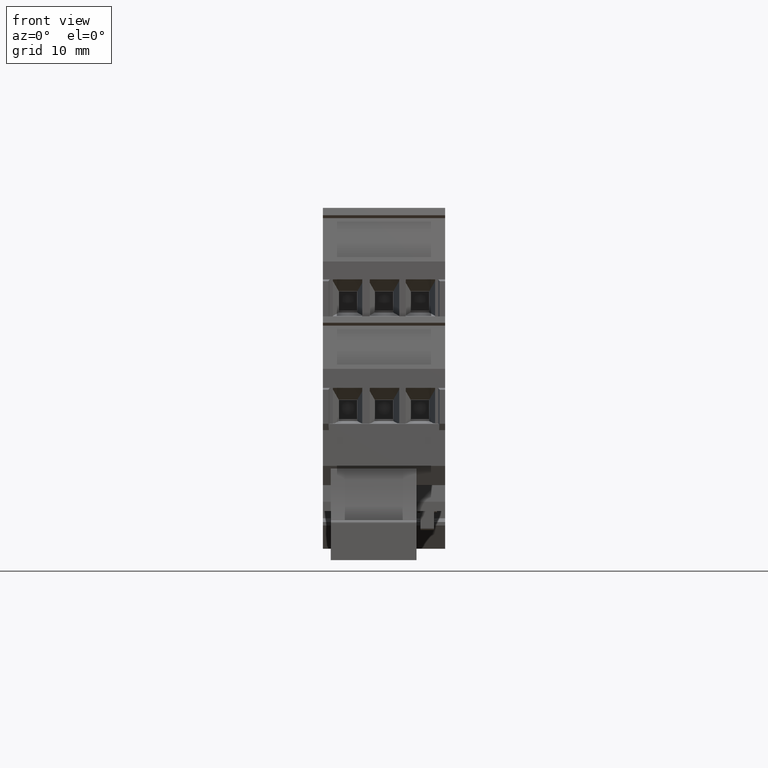
[diagram: clean part render]
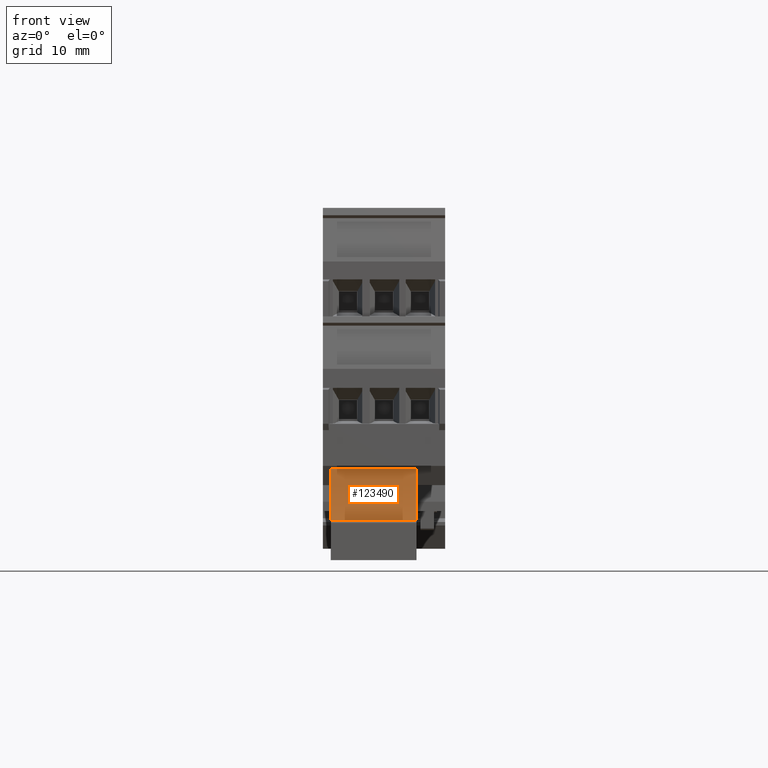
[diagram: same view with one face highlighted and labeled with its STEP entity id]
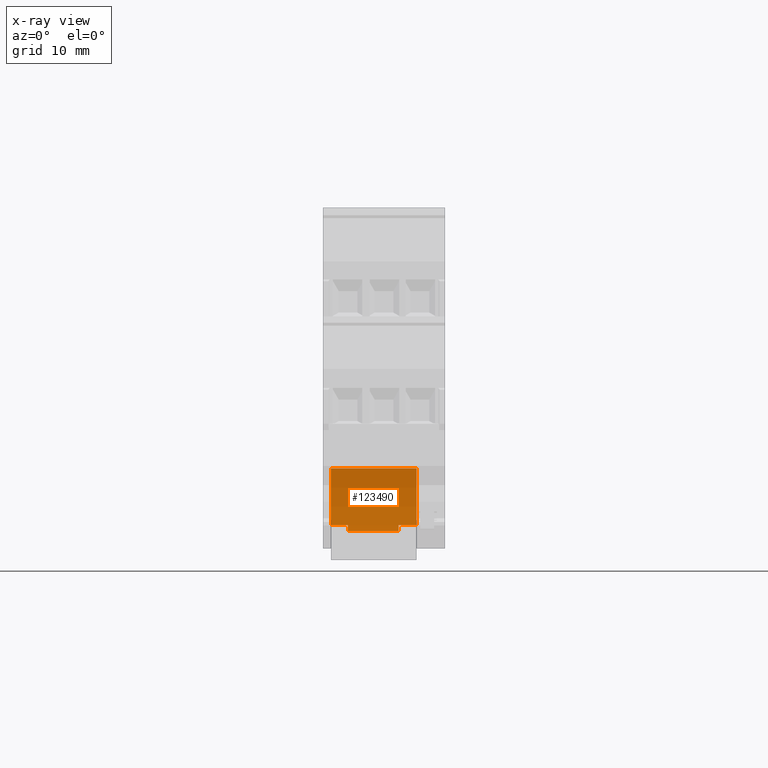
[diagram: x-ray of the same camera — body ghosted, the highlighted face saturated]
A machine part, front view. The second image highlights one B-rep face of the part: STEP entity #123490.
The next image is the same camera in x-ray: the body ghosted, the highlighted face saturated — about 0% of this face is hidden behind the body in this view.
In plain terms, the highlighted cylindrical surface (partial cylindrical patch) has radius 36.4216 mm, axis along (1, -0, 0).
Its self-contained STEP definition (entity closure, byte-faithful):
#121330=CARTESIAN_POINT('',(79.7533464536203,32.5000004563257,
-18.6383414401495));
#121340=DIRECTION('',(-0.866025403784439,-0.5,5.98477384386257E-11));
#121350=DIRECTION('',(-0.5,0.866025403784439,-1.57369833720293E-11));
#121360=AXIS2_PLACEMENT_3D('',#121330,#121340,#121350);
#121370=PLANE('',#121360);
#121520=CARTESIAN_POINT('',(78.7945118903171,34.1607506376419,
-5.08834144288964));
#121530=VERTEX_POINT('',#121520);
#121560=CARTESIAN_POINT('',(42.4807811699336,36.9623254543455,
-19.2423438435019));
#121570=DIRECTION('',(1.96178160729168E-21,4.39608926050624E-11,1.));
#121580=DIRECTION('',(0.949996010420321,-0.312262037695065,
1.3727317901887E-11));
#121590=AXIS2_PLACEMENT_3D('',#121560,#121570,#121580);
#121600=CYLINDRICAL_SURFACE('',#121590,36.42164);
#121610=CARTESIAN_POINT('',(78.7945118902532,34.1607506362684,
-17.4883414452643));
#121620=CARTESIAN_POINT('',(78.7945118902585,34.1607506363828,
-16.4550081117331));
#121630=CARTESIAN_POINT('',(78.7945118902638,34.1607506364973,
-15.4216747782019));
#121640=CARTESIAN_POINT('',(78.7945118902691,34.1607506366117,
-14.3883414446707));
#121650=CARTESIAN_POINT('',(78.7945118902745,34.1607506367262,
-13.3550081111395));
#121660=CARTESIAN_POINT('',(78.7945118902798,34.1607506368407,
-12.3216747776082));
#121670=CARTESIAN_POINT('',(78.7945118902851,34.1607506369551,
-11.288341444077));
#121680=CARTESIAN_POINT('',(78.7945118902905,34.1607506370696,
-10.2550081105458));
#121690=CARTESIAN_POINT('',(78.7945118902958,34.1607506371841,
-9.22167477701449));
#121700=CARTESIAN_POINT('',(78.7945118903011,34.1607506372985,
-8.18834144348332));
#121710=CARTESIAN_POINT('',(78.7945118903038,34.1607506373557,
-7.67167477671771));
#121720=CARTESIAN_POINT('',(78.7945118903064,34.160750637413,
-7.15500810995209));
#121730=CARTESIAN_POINT('',(78.7945118903091,34.1607506374702,
-6.63834144318647));
#121740=CARTESIAN_POINT('',(78.7945118903117,34.1607506375274,
-6.12167477642086));
#121750=CARTESIAN_POINT('',(78.7945118903144,34.1607506375847,
-5.60500810965523));
#121760=CARTESIAN_POINT('',(78.7945118903171,34.1607506376419,
-5.08834144288964));
#121770=B_SPLINE_CURVE_WITH_KNOTS('',3,(#121610,#121620,#121630,#121640,
#121650,#121660,#121670,#121680,#121690,#121700,#121710,#121720,#121730,
#121740,#121750,#121760),.UNSPECIFIED.,.F.,.F.,(4,3,3,3,3,4),(0.,
3.10000000059367,6.20000000118733,9.300000001781,10.8500000020778,
12.4000000023747),.UNSPECIFIED.);
#121780=SURFACE_CURVE('',#121770,(#121370,#121600),.CURVE_3D.);
#121790=CARTESIAN_POINT('',(78.7945118902532,34.1607506362684,
-17.4883414452643));
#121800=VERTEX_POINT('',#121790);
#121810=EDGE_CURVE('',#121800,#121530,#121780,.T.);
#122920=CARTESIAN_POINT('',(77.1962249483997,25.9453465783669,
-19.2423438430176));
#122930=DIRECTION('',(1.96178160729168E-21,4.39608926050624E-11,1.));
#122940=VECTOR('',#122930,1.);
#122950=LINE('',#122920,#122940);
#122960=CARTESIAN_POINT('',(77.1962249483997,25.9453465788748,
-7.68834144431862));
#122970=VERTEX_POINT('',#122960);
#122980=CARTESIAN_POINT('',(77.1962249483997,25.9453465789891,
-5.08834144252849));
#122990=VERTEX_POINT('',#122980);
#123000=EDGE_CURVE('',#122970,#122990,#122950,.T.);
#123010=ORIENTED_EDGE('',*,*,#123000,.T.);
#123020=CARTESIAN_POINT('',(42.4807811699336,36.9623254548535,
-7.68834144479078));
#123030=DIRECTION('',(1.96178160729168E-21,4.39608926050624E-11,1.));
#123040=DIRECTION('',(0.949996010420321,-0.312262037695065,
1.3727317901887E-11));
#123050=AXIS2_PLACEMENT_3D('',#123020,#123030,#123040);
#123060=CIRCLE('',#123050,36.42164);
#123070=CARTESIAN_POINT('',(76.903005521337,25.0607990405128,
-7.68834144427938));
#123080=VERTEX_POINT('',#123070);
#123090=EDGE_CURVE('',#123080,#122970,#123060,.T.);
#123100=ORIENTED_EDGE('',*,*,#123090,.T.);
#123110=CARTESIAN_POINT('',(76.903005521337,25.0607990405128,
-7.68834144427938));
#123120=DIRECTION('',(4.28123612420054E-13,4.42080698744088E-11,1.));
#123130=VECTOR('',#123120,1.);
#123140=LINE('',#123110,#123130);
#123150=CARTESIAN_POINT('',(76.9030055213361,25.0607990401893,
-14.9883414444423));
#123160=VERTEX_POINT('',#123150);
#123170=EDGE_CURVE('',#123160,#123080,#123140,.T.);
#123180=ORIENTED_EDGE('',*,*,#123170,.T.);
#123190=CARTESIAN_POINT('',(42.4807811699336,36.9623254545325,
-14.9883414449655));
#123200=DIRECTION('',(1.96178160729168E-21,4.39608926050624E-11,1.));
#123210=DIRECTION('',(0.949996010420321,-0.312262037695065,
1.3727317901887E-11));
#123220=AXIS2_PLACEMENT_3D('',#123190,#123200,#123210);
#123230=CIRCLE('',#123220,36.42164);
#123240=CARTESIAN_POINT('',(77.1962249483997,25.9453465785539,
-14.9883414444811));
#123250=VERTEX_POINT('',#123240);
#123260=EDGE_CURVE('',#123160,#123250,#123230,.T.);
#123270=ORIENTED_EDGE('',*,*,#123260,.F.);
#123280=CARTESIAN_POINT('',(77.1962249483997,25.945346578444,
-17.4883414449032));
#123290=VERTEX_POINT('',#123280);
#123300=EDGE_CURVE('',#123290,#123250,#122950,.T.);
#123310=ORIENTED_EDGE('',*,*,#123300,.T.);
#123320=CARTESIAN_POINT('',(42.4807811699336,36.9623254544226,
-17.4883414453875));
#123330=DIRECTION('',(1.96178160729168E-21,4.39608926050624E-11,1.));
#123340=DIRECTION('',(0.949996010420321,-0.312262037695065,
1.3727317901887E-11));
#123350=AXIS2_PLACEMENT_3D('',#123320,#123330,#123340);
#123360=CIRCLE('',#123350,36.42164);
#123370=EDGE_CURVE('',#123290,#121800,#123360,.T.);
#123380=ORIENTED_EDGE('',*,*,#123370,.F.);
#123390=ORIENTED_EDGE('',*,*,#121810,.F.);
#123400=CARTESIAN_POINT('',(42.4807811699336,36.9623254549678,
-5.0883414430128));
#123410=DIRECTION('',(1.96178160729168E-21,4.39608926050624E-11,1.));
#123420=DIRECTION('',(0.949996010420321,-0.312262037695065,
1.3727317901887E-11));
#123430=AXIS2_PLACEMENT_3D('',#123400,#123410,#123420);
#123440=CIRCLE('',#123430,36.42164);
#123450=EDGE_CURVE('',#122990,#121530,#123440,.T.);
#123460=ORIENTED_EDGE('',*,*,#123450,.T.);
#123470=EDGE_LOOP('',(#123460,#123390,#123380,#123310,#123270,#123180,
#123100,#123010));
#123480=FACE_OUTER_BOUND('',#123470,.T.);
#123490=ADVANCED_FACE('',(#123480),#121600,.F.);